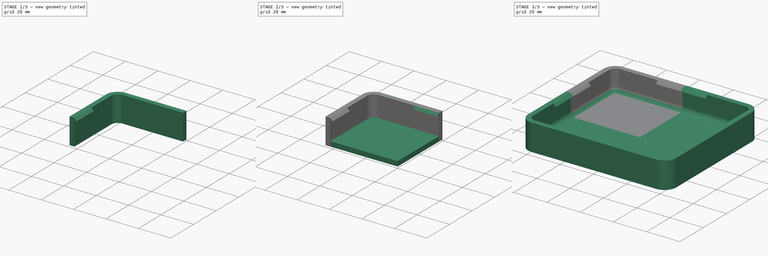
[diagram: build sequence overview — one tinted view per stage of 3, left to right]
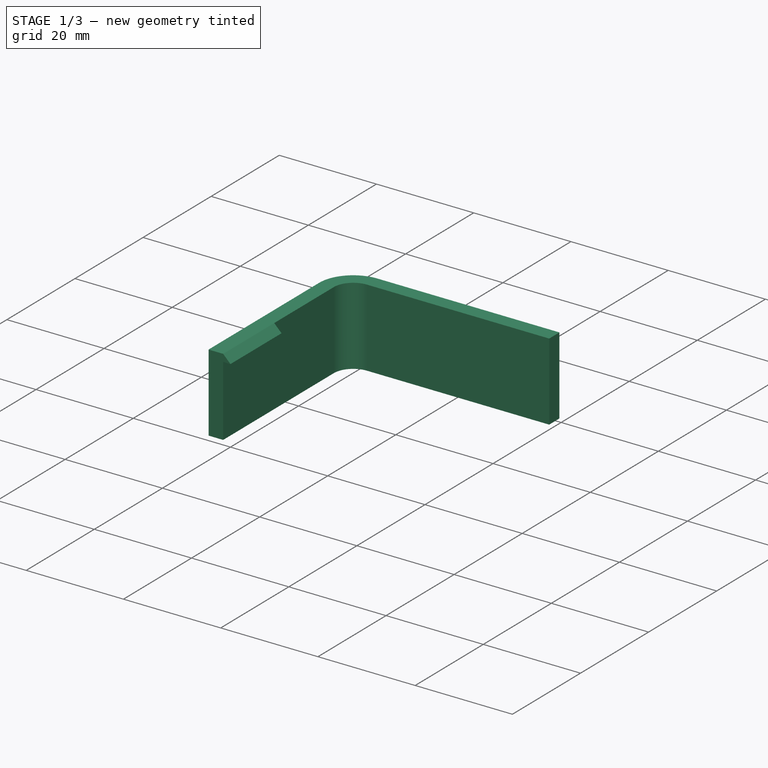
[diagram: stage 1 of 3 — iso view after this stage's code; geometry added in this stage tinted green]
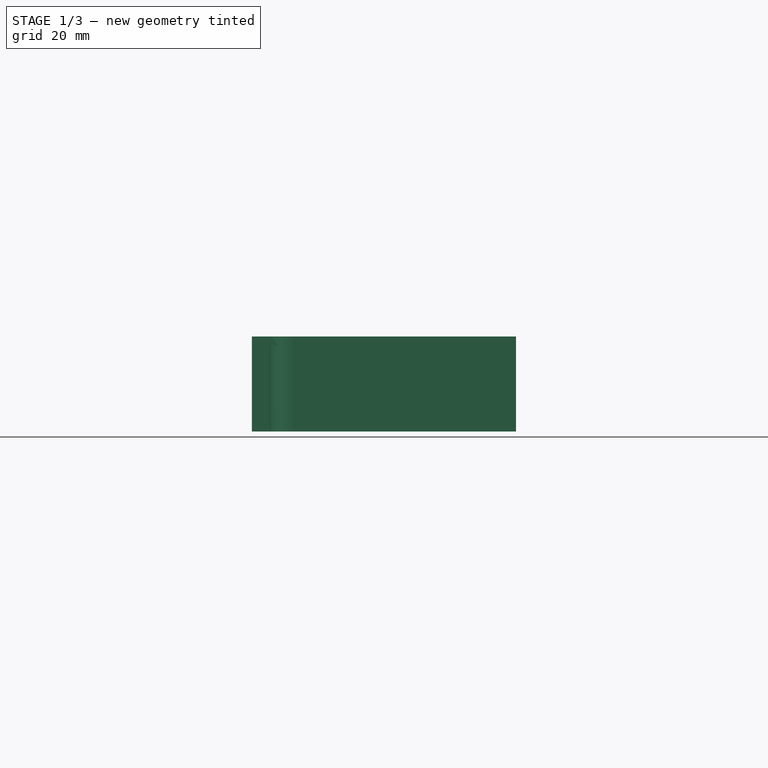
[diagram: stage 1 of 3 — front view after this stage's code; geometry added in this stage tinted green]
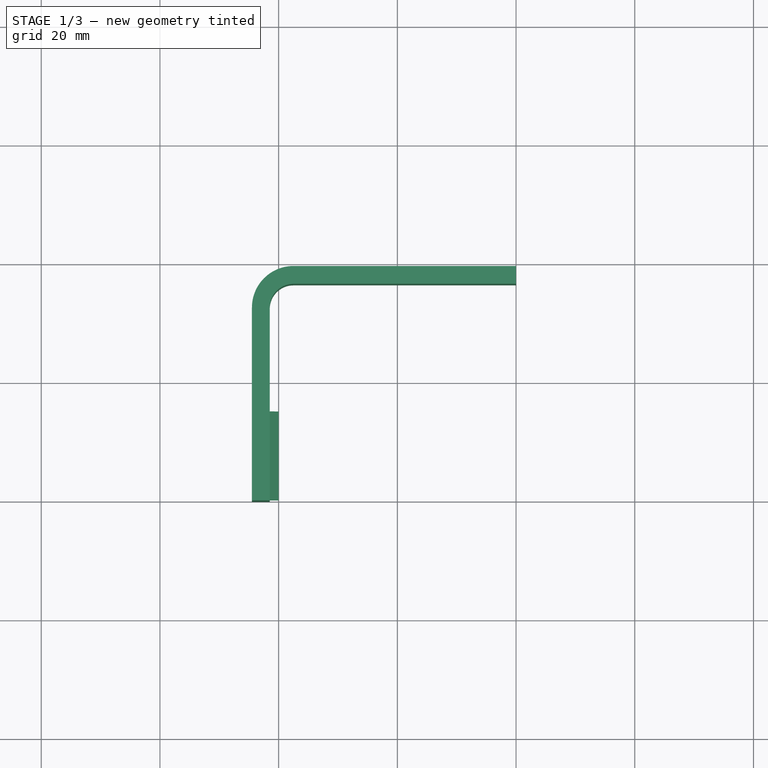
[diagram: stage 1 of 3 — top view after this stage's code; geometry added in this stage tinted green]
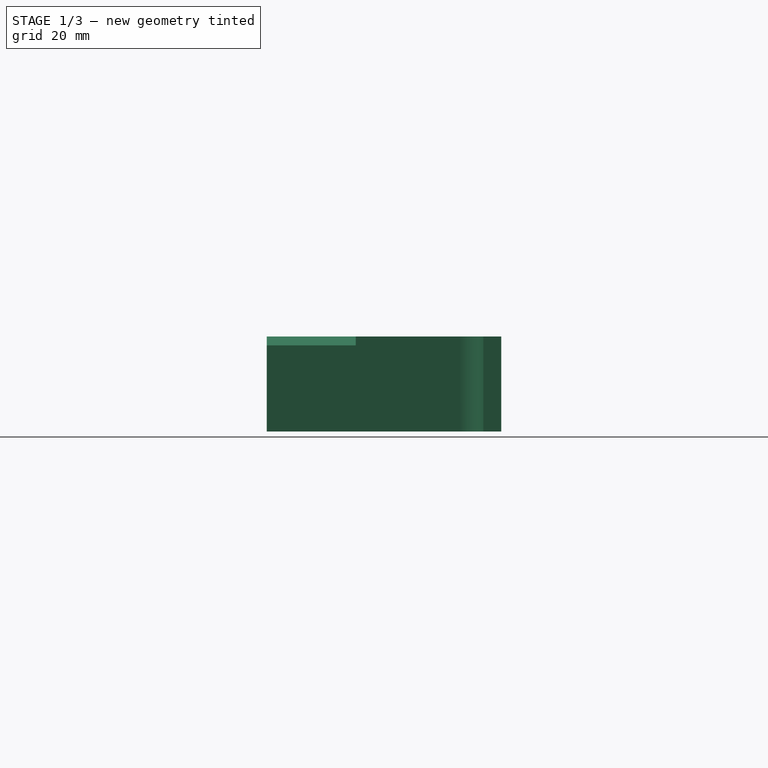
[diagram: stage 1 of 3 — right view after this stage's code; geometry added in this stage tinted green]
FCSTD DOCUMENT  (FreeCAD 0.20R29410 (Git))
Label: case
License: All rights reserved
LicenseURL: http://en.wikipedia.org/wiki/All_rights_reserved
objects: Sketcher::SketchObject×4, PartDesign::Pad×4, PartDesign::Mirrored×2, PartDesign::MultiTransform×1, PartDesign::Fillet×1, PartDesign::Body×1
note: 18 computed .brp shape members not serialized (recipe doc carries the construction recipe); baked Part::Feature solids carry a one-line shape summary decoded from their .brp

FEATURE [Sketcher::SketchObject] Sketch
  FullyConstrained = true
  MapMode = 5
  Support = -> [XY_Plane]
  sketch-geometry (10):
    g0: LineSegment StartX=0 StartY=36.5 StartZ=0 EndX=-37.5 EndY=36.5 EndZ=0
    g1: LineSegment StartX=-41.5 StartY=32.5 StartZ=0 EndX=-41.5 EndY=0 EndZ=0
    g2: ArcOfCircle CenterX=-37.5 CenterY=32.5 CenterZ=0 NormalX=0 NormalY=0 NormalZ=1 AngleXU=0 Radius=4 StartAngle=1.5708 EndAngle=3.14159
    g3: GeomPoint X=-41.5 Y=36.5 Z=0
    g4: LineSegment StartX=-41.5 StartY=0 StartZ=0 EndX=-44.5 EndY=0 EndZ=0
    g5: LineSegment StartX=0 StartY=36.5 StartZ=0 EndX=0 EndY=39.5 EndZ=0
    g6: LineSegment StartX=-44.5 StartY=0 StartZ=0 EndX=-44.5 EndY=32.5 EndZ=0
    g7: LineSegment StartX=-37.5 StartY=39.5 StartZ=0 EndX=0 EndY=39.5 EndZ=0
    g8: ArcOfCircle CenterX=-37.5 CenterY=32.5 CenterZ=0 NormalX=0 NormalY=0 NormalZ=1 AngleXU=0 Radius=7 StartAngle=1.5708 EndAngle=3.14159
    g9: GeomPoint X=-44.5 Y=39.5 Z=0
  constraints (25):
    c: Horizontal(g0)
    c: Vertical(g1)
    c: PointOnObject(g3,g0)
    c: PointOnObject(g3,g1)
    c: Tangent(g0,g2) = -1.5708
    c: Tangent(g1,g2) = -1.5708
    c: DistanceY(g1,g3) = 36.5
    c: DistanceX(g3,g0) = 41.5
    c: PointOnObject(g1,g-1)
    c: PointOnObject(g0,g-2)
    c: DistanceY(g2,g0) = 4
    c: Coincident(g4,g1)
    c: PointOnObject(g4,g-1)
    c: Coincident(g5,g0)
    c: PointOnObject(g5,g-2)
    c: DistanceY(g5,g5) = 3
    c: DistanceX(g4,g4) = 3
    c: Coincident(g4,g6)
    c: Vertical(g6)
    c: Coincident(g7,g5)
    c: PointOnObject(g9,g7)
    c: PointOnObject(g9,g6)
    c: Tangent(g7,g8) = 1.5708
    c: Tangent(g6,g8) = 1.5708
    c: Coincident(g2,g8)
FEATURE [Sketcher::SketchObject] Sketch001  label="lip x"
  AttachmentOffset = pos=(0,0,0) rot=(0,1,0;1.5708rad)
  FullyConstrained = true
  MapMode = 5
  Placement = pos=(-41.5,0,0) rot=(0,0.707107,0.707107;3.14159rad)
  sketch-geometry (3):
    g0: LineSegment StartX=0 StartY=0 StartZ=0 EndX=-1.5 EndY=-1.5 EndZ=0
    g1: LineSegment StartX=-1.5 StartY=-1.5 StartZ=0 EndX=0 EndY=-1.5 EndZ=0
    g2: LineSegment StartX=0 StartY=0 StartZ=0 EndX=0 EndY=-1.5 EndZ=0
  constraints (8):
    c: Coincident(g0,g-1)
    c: Coincident(g1,g0)
    c: PointOnObject(g1,g-2)
    c: Horizontal(g1)
    c: Coincident(g2,g0)
    c: Coincident(g2,g1)
    c: DistanceY(g2,g2) = 1.5
    c: DistanceX(g1,g1) = 1.5
FEATURE [PartDesign::Pad] Pad001  label="lip x ext"
  Direction = (0,1,-2e-16)
  Length = 15
  Length2 = 10
  Placement = pos=(-41.5,0,0) rot=(0,0.707107,0.707107;3.14159rad)
  Profile = -> Sketch001
  ReferenceAxis = -> Sketch001 [N_Axis]
  Type = 0
FEATURE [PartDesign::Pad] Pad  label="edge"
  BaseFeature = -> Pad001
  Direction = (0,0,1)
  Length = 16
  Length2 = 10
  Placement = pos=(-41.5,0,0) rot=(0,0.707107,0.707107;3.14159rad)
  Profile = -> Sketch
  ReferenceAxis = -> Sketch [N_Axis]
  Reversed = true
  Type = 0
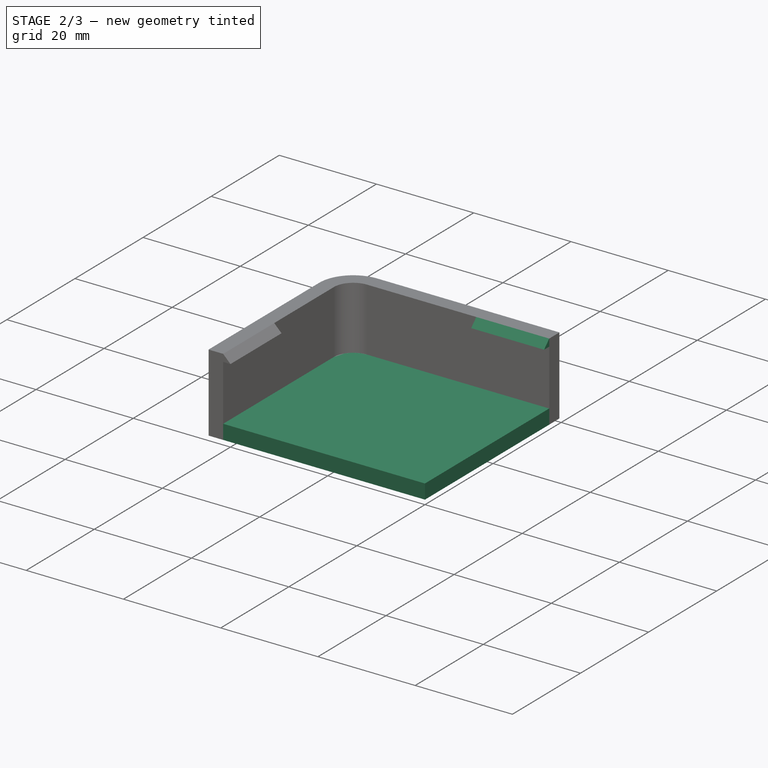
[diagram: stage 2 of 3 — iso view after this stage's code; geometry added in this stage tinted green]
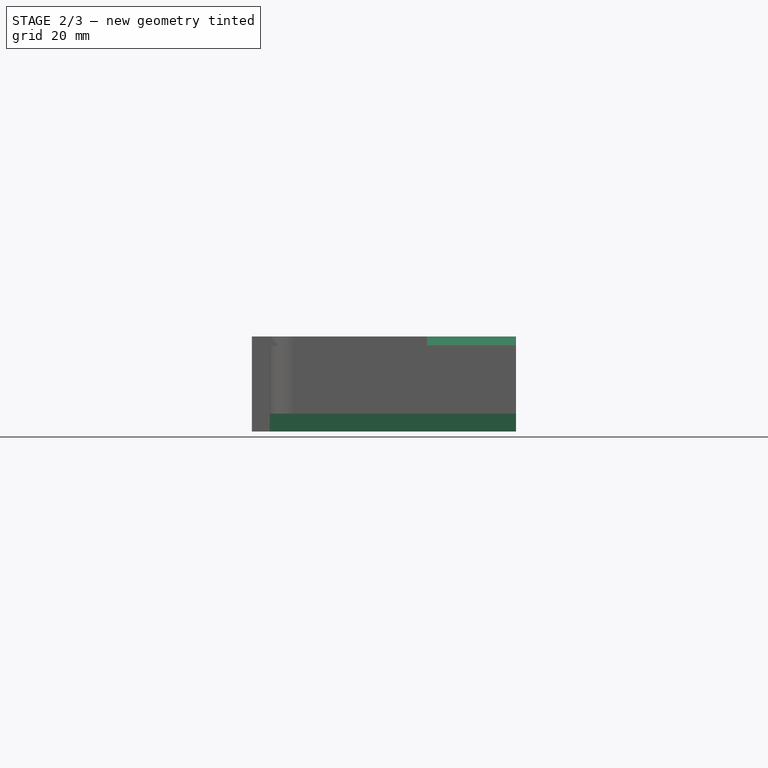
[diagram: stage 2 of 3 — front view after this stage's code; geometry added in this stage tinted green]
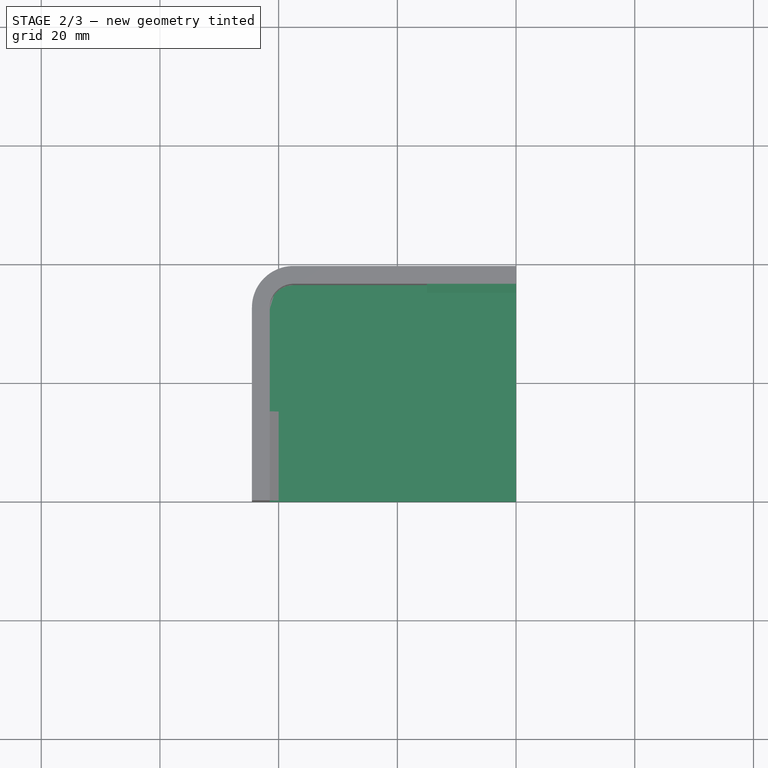
[diagram: stage 2 of 3 — top view after this stage's code; geometry added in this stage tinted green]
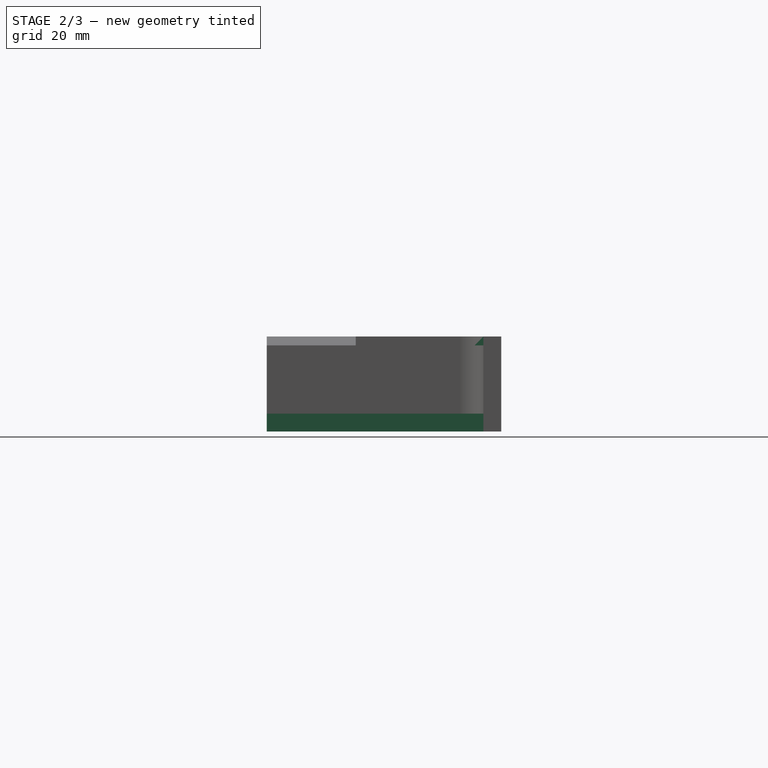
[diagram: stage 2 of 3 — right view after this stage's code; geometry added in this stage tinted green]
FEATURE [Sketcher::SketchObject] Sketch002
  ExternalGeometry = -> [Pad]
  FullyConstrained = true
  MapMode = 5
  Placement = pos=(-41.5,0,-16) rot=(0,1,0;3.14159rad)
  Support = -> [Pad]
  sketch-geometry (6):
    g0: LineSegment StartX=-41.5 StartY=39.5 StartZ=0 EndX=-4 EndY=39.5 EndZ=0
    g1: LineSegment StartX=3 StartY=32.5 StartZ=0 EndX=3 EndY=0 EndZ=0
    g2: LineSegment StartX=3 StartY=0 StartZ=0 EndX=-41.5 EndY=0 EndZ=0
    g3: LineSegment StartX=-41.5 StartY=0 StartZ=0 EndX=-41.5 EndY=39.5 EndZ=0
    g4: ArcOfCircle CenterX=-4 CenterY=32.5 CenterZ=0 NormalX=0 NormalY=0 NormalZ=1 AngleXU=0 Radius=7 StartAngle=-9e-16 EndAngle=1.5708
    g5: GeomPoint X=3 Y=39.5 Z=0
  constraints (13):
    c: Coincident(g1,g2)
    c: Coincident(g2,g3)
    c: Coincident(g3,g0)
    c: Horizontal(g0)
    c: Horizontal(g2)
    c: Vertical(g3)
    c: Coincident(g0,g-3)
    c: Coincident(g1,g-4)
    c: PointOnObject(g5,g0)
    c: PointOnObject(g5,g1)
    c: Tangent(g0,g4) = 1.5708
    c: Tangent(g1,g4) = 1.5708
    c: Coincident(g4,g-5)
FEATURE [PartDesign::Pad] Pad002  label="bot"
  BaseFeature = -> Pad
  Direction = (-1e-16,0,-1)
  Length = 3
  Length2 = 10
  Placement = pos=(-41.5,0,0) rot=(0,0.707107,0.707107;3.14159rad)
  Profile = -> Sketch002
  ReferenceAxis = -> Sketch002 [N_Axis]
  Reversed = true
  Type = 0
FEATURE [Sketcher::SketchObject] Sketch003  label="lip y"
  AttachmentOffset = pos=(-41.5,0,0) rot=(0,1,0;1.5708rad)
  FullyConstrained = true
  MapMode = 5
  Placement = pos=(-7.1e-15,36.5,0) rot=(0.57735,0.57735,-0.57735;4.18879rad)
  Support = -> [Pad002]
  sketch-geometry (3):
    g0: LineSegment StartX=0 StartY=0 StartZ=0 EndX=-1.5 EndY=1.5 EndZ=0
    g1: LineSegment StartX=-1.5 StartY=1.5 StartZ=0 EndX=0 EndY=1.5 EndZ=0
    g2: LineSegment StartX=0 StartY=1.5 StartZ=0 EndX=0 EndY=0 EndZ=0
  constraints (8):
    c: Coincident(g0,g1)
    c: PointOnObject(g1,g-2)
    c: Horizontal(g1)
    c: Coincident(g1,g2)
    c: DistanceX(g1,g1) = 1.5
    c: Coincident(g0,g2)
    c: Coincident(g0,g-1)
    c: DistanceY(g2,g2) = 1.5
FEATURE [PartDesign::Pad] Pad003
  BaseFeature = -> Pad002
  Direction = (-1,-3e-16,0)
  Length = 15
  Length2 = 10
  Placement = pos=(-41.5,0,0) rot=(0,0.707107,0.707107;3.14159rad)
  Profile = -> Sketch003
  ReferenceAxis = -> Sketch003 [N_Axis]
  Type = 0
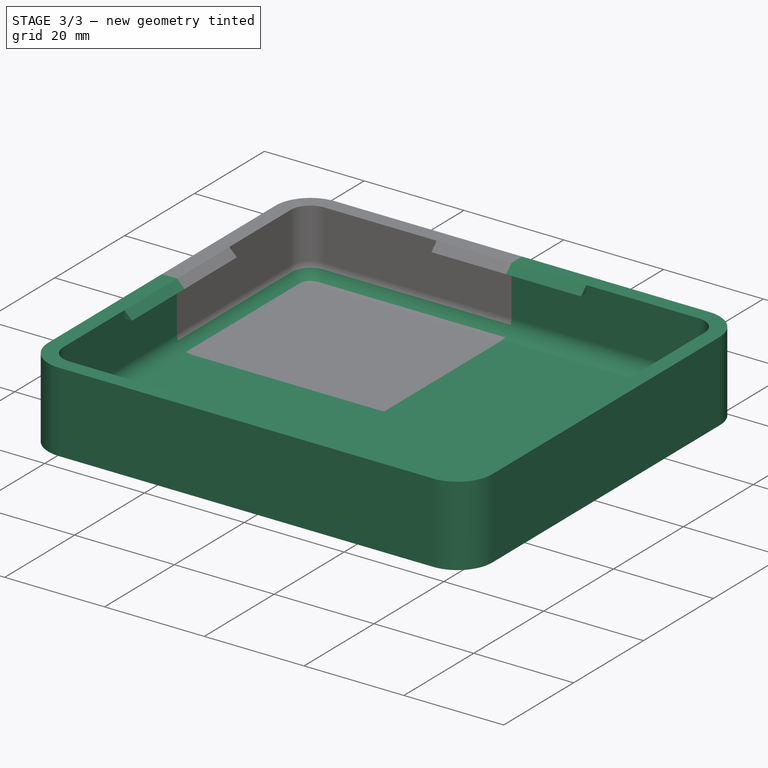
[diagram: stage 3 of 3 — iso view after this stage's code; geometry added in this stage tinted green]
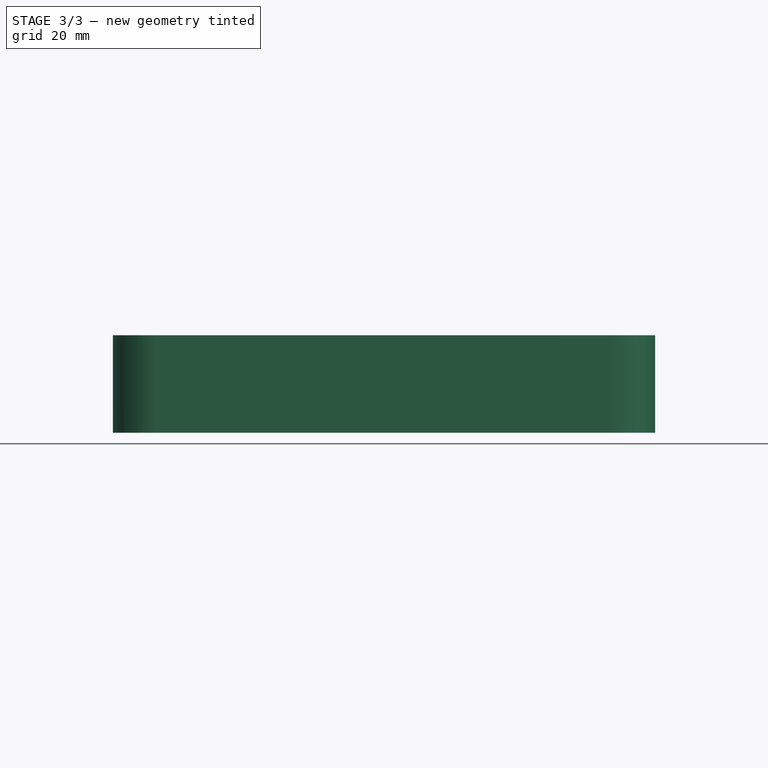
[diagram: stage 3 of 3 — front view after this stage's code; geometry added in this stage tinted green]
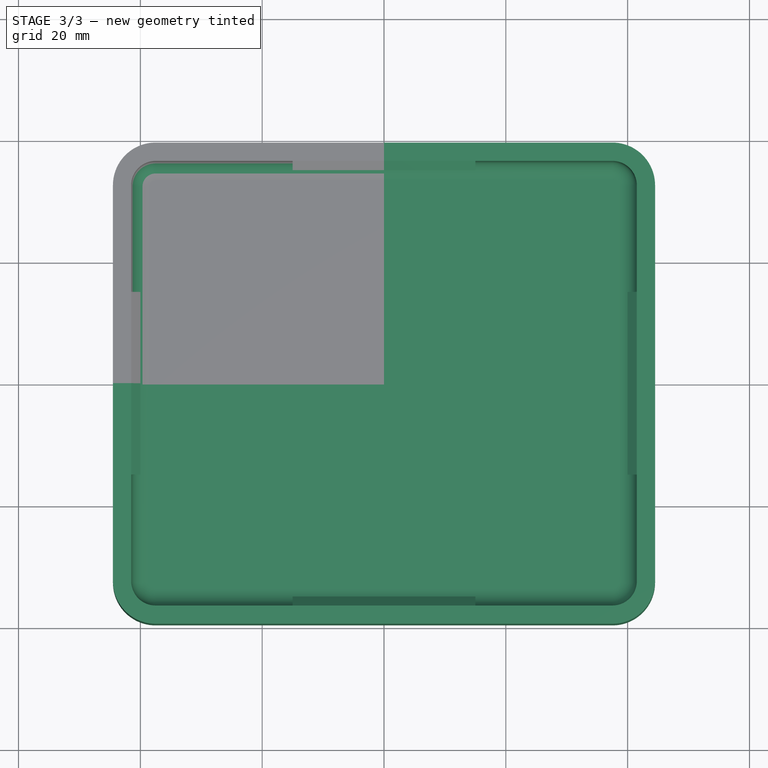
[diagram: stage 3 of 3 — top view after this stage's code; geometry added in this stage tinted green]
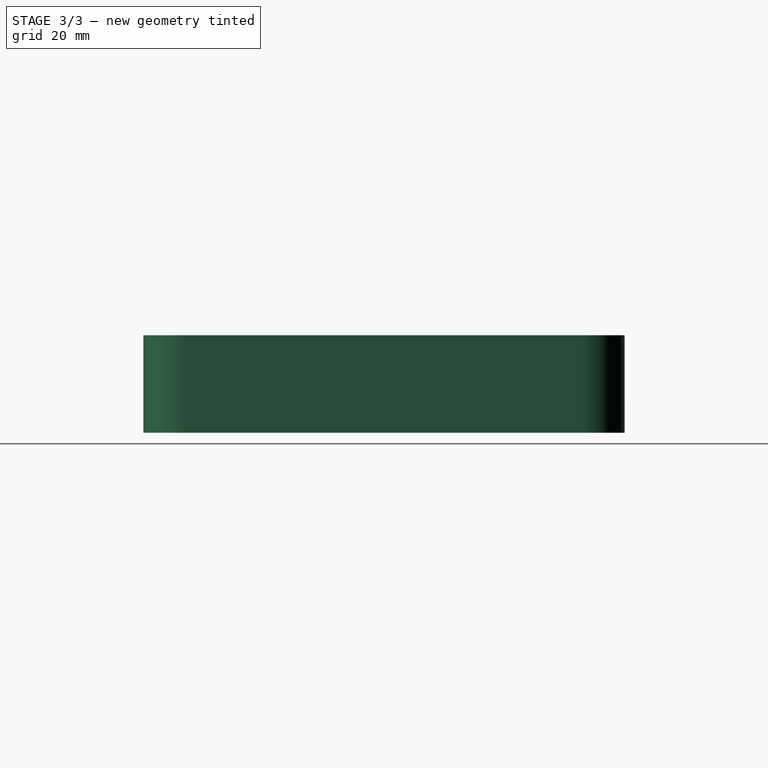
[diagram: stage 3 of 3 — right view after this stage's code; geometry added in this stage tinted green]
FEATURE [PartDesign::Mirrored] Mirrored
  MirrorPlane = -> XZ_Plane
  Placement = pos=(-41.5,0,0) rot=(0,0.707107,0.707107;3.14159rad)
FEATURE [PartDesign::Mirrored] Mirrored001
  MirrorPlane = -> YZ_Plane
  Placement = pos=(-41.5,0,0) rot=(0,0.707107,0.707107;3.14159rad)
FEATURE [PartDesign::MultiTransform] MultiTransform
  BaseFeature = -> Pad003
  Originals = -> [Pad001,Pad,Pad002,Pad003]
  Placement = pos=(-41.5,0,0) rot=(0,0.707107,0.707107;3.14159rad)
  Transformations = -> [Mirrored,Mirrored001]
FEATURE [PartDesign::Fillet] Fillet
  Base = -> MultiTransform [Face40,Face62,Face39,Face17]
  BaseFeature = -> MultiTransform
  Placement = pos=(-41.5,0,0) rot=(0,0.707107,0.707107;3.14159rad)
  Radius = 3
  SupportTransform = false
  UseAllEdges = false
FEATURE [PartDesign::Body] Body
  Group = -> [Sketch,Sketch001,Pad001,Pad,Sketch002,Pad002,Sketch003,Pad003,MultiTransform,Mirrored,Mirrored001,Fillet]
  Origin = -> Origin
  Tip = -> Fillet
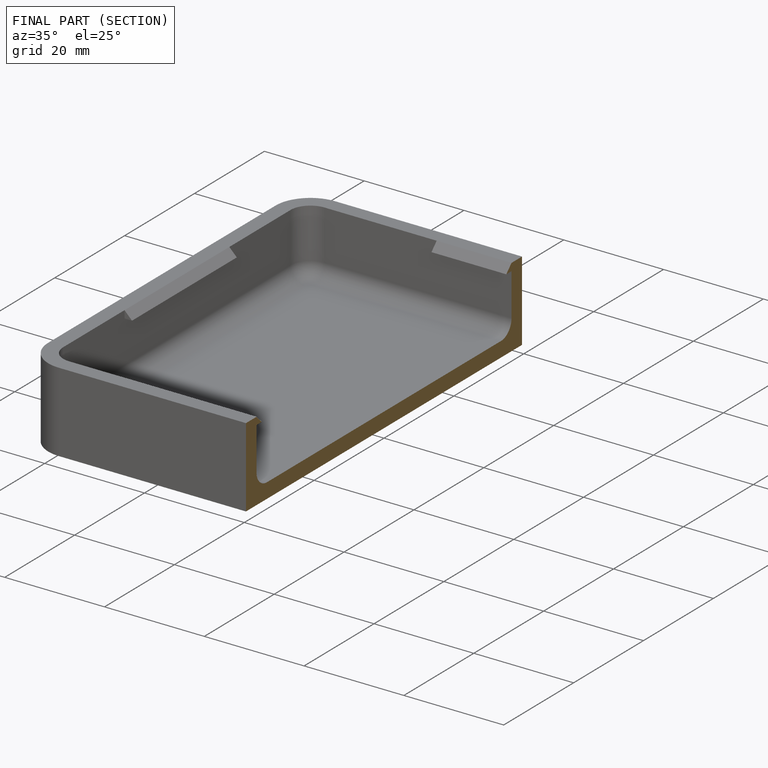
[diagram: finished part — half-section view (interior)]
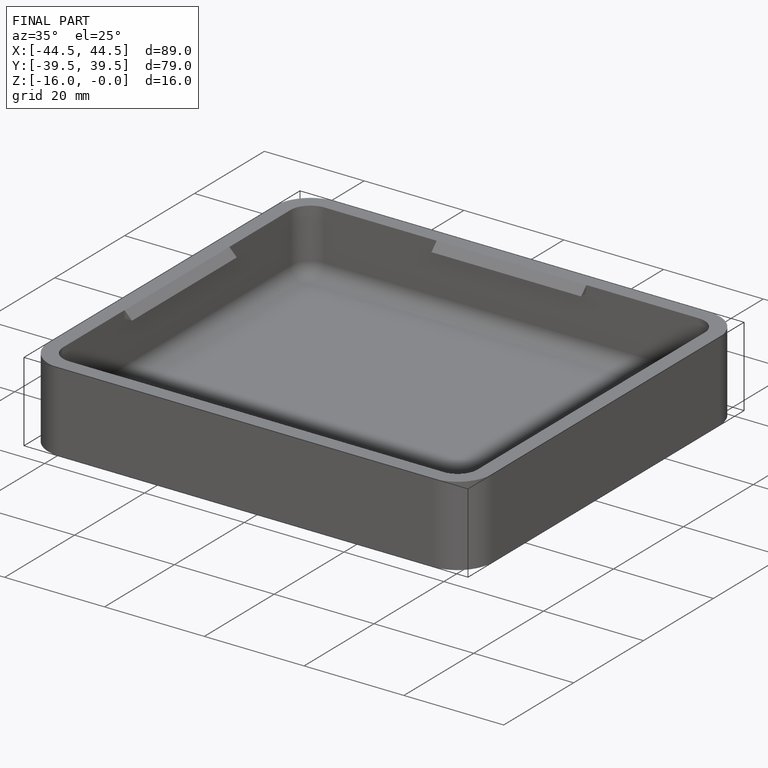
[diagram: finished part — iso view with bounding-box wireframe]
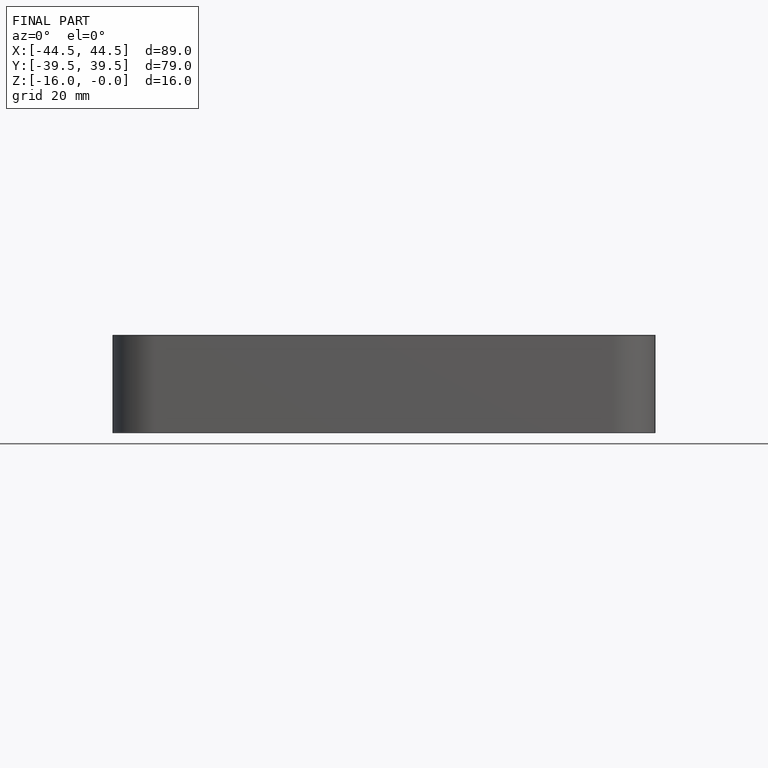
[diagram: finished part — front view with bounding-box wireframe]
